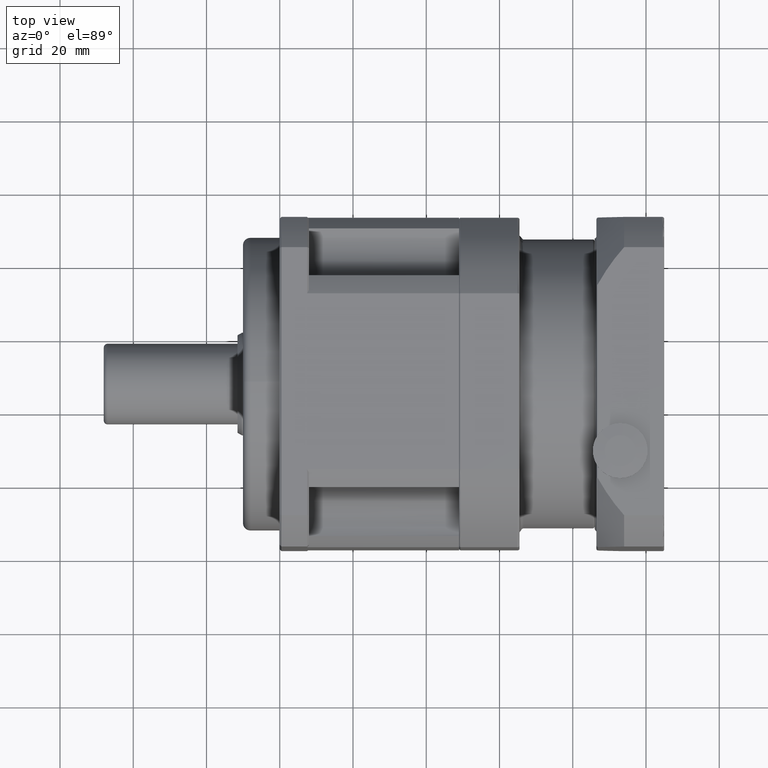
[diagram: clean part render]
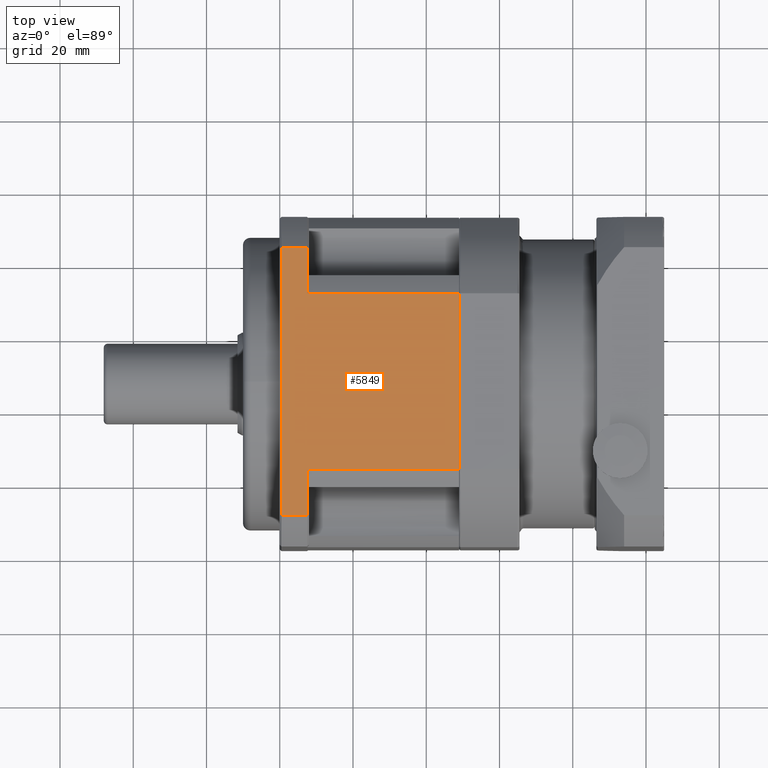
[diagram: same view with one face highlighted and labeled with its STEP entity id]
A machine part, top view. The second image highlights one B-rep face of the part: STEP entity #5849.
In plain terms, the highlighted planar face has unit normal (0, -0, 1).
Its self-contained STEP definition (entity closure, byte-faithful):
#256=LINE('',#9928,#523);
#267=LINE('',#10026,#534);
#272=LINE('',#10065,#539);
#278=LINE('',#10083,#545);
#279=LINE('',#10087,#546);
#280=LINE('',#10088,#547);
#281=LINE('',#10089,#548);
#282=LINE('',#10090,#549);
#523=VECTOR('',#7674,48.);
#534=VECTOR('',#7755,12.592348927064);
#539=VECTOR('',#7786,12.592348927064);
#545=VECTOR('',#7802,7.);
#546=VECTOR('',#7807,7.);
#547=VECTOR('',#7808,73.184697854128);
#548=VECTOR('',#7809,41.5);
#549=VECTOR('',#7810,41.5);
#883=PLANE('',#6488);
#1365=FACE_OUTER_BOUND('',#1871,.T.);
#1871=EDGE_LOOP('',(#4532,#4533,#4534,#4535,#4536,#4537,#4538,#4539));
#2726=VERTEX_POINT('',#9925);
#2727=VERTEX_POINT('',#9927);
#2758=VERTEX_POINT('',#10024);
#2759=VERTEX_POINT('',#10025);
#2771=VERTEX_POINT('',#10062);
#2772=VERTEX_POINT('',#10064);
#2775=VERTEX_POINT('',#10082);
#2776=VERTEX_POINT('',#10086);
#3357=EDGE_CURVE('',#2726,#2727,#256,.T.);
#3395=EDGE_CURVE('',#2758,#2759,#267,.T.);
#3411=EDGE_CURVE('',#2771,#2772,#272,.T.);
#3420=EDGE_CURVE('',#2775,#2772,#278,.T.);
#3422=EDGE_CURVE('',#2758,#2776,#279,.T.);
#3423=EDGE_CURVE('',#2775,#2776,#280,.T.);
#3424=EDGE_CURVE('',#2771,#2727,#281,.T.);
#3425=EDGE_CURVE('',#2726,#2759,#282,.T.);
#4532=ORIENTED_EDGE('',*,*,#3395,.F.);
#4533=ORIENTED_EDGE('',*,*,#3422,.T.);
#4534=ORIENTED_EDGE('',*,*,#3423,.F.);
#4535=ORIENTED_EDGE('',*,*,#3420,.T.);
#4536=ORIENTED_EDGE('',*,*,#3411,.F.);
#4537=ORIENTED_EDGE('',*,*,#3424,.T.);
#4538=ORIENTED_EDGE('',*,*,#3357,.F.);
#4539=ORIENTED_EDGE('',*,*,#3425,.T.);
#5849=ADVANCED_FACE('',(#1365),#883,.T.);
#6488=AXIS2_PLACEMENT_3D('',#10085,#7805,#7806);
#7674=DIRECTION('',(6.10622663543787E-16,-1.,-1.19348975147199E-15));
#7755=DIRECTION('',(6.10622663543787E-16,-1.,-1.19348975147199E-15));
#7786=DIRECTION('',(6.10622663543787E-16,-1.,-1.19348975147199E-15));
#7802=DIRECTION('',(1.,6.10622663543793E-16,-4.82820056512866E-15));
#7805=DIRECTION('center_axis',(4.82820056512866E-15,-1.19348975147199E-15,
1.));
#7806=DIRECTION('ref_axis',(-5.32907051820075E-16,1.,1.4210854715202E-15));
#7807=DIRECTION('',(-1.,-6.10622663543793E-16,4.82820056512866E-15));
#7808=DIRECTION('',(-6.10622663543787E-16,1.,1.19348975147199E-15));
#7809=DIRECTION('',(1.,6.10622663543793E-16,-4.82820056512866E-15));
#7810=DIRECTION('',(-1.,-6.10622663543793E-16,4.82820056512866E-15));
#9925=CARTESIAN_POINT('',(-11.029710344318,-8.39332757892474,55.8503877548311));
#9927=CARTESIAN_POINT('',(-11.029710344318,-56.3933275789247,55.850387754831));
#9928=CARTESIAN_POINT('',(-11.029710344318,12.6066724210752,55.8503877548311));
#10024=CARTESIAN_POINT('',(-52.529710344318,4.19902134813922,55.8503877548313));
#10025=CARTESIAN_POINT('',(-52.529710344318,-8.39332757892477,55.8503877548313));
#10026=CARTESIAN_POINT('',(-52.529710344318,-54.8933275789248,55.8503877548312));
#10062=CARTESIAN_POINT('',(-52.529710344318,-56.3933275789248,55.8503877548312));
#10064=CARTESIAN_POINT('',(-52.5297103443179,-68.9856765059887,55.8503877548312));
#10065=CARTESIAN_POINT('',(-52.529710344318,-54.8933275789248,55.8503877548312));
#10082=CARTESIAN_POINT('',(-59.5297103443179,-68.9856765059888,55.8503877548312));
#10083=CARTESIAN_POINT('',(-11.0297103443179,-68.9856765059887,55.850387754831));
#10085=CARTESIAN_POINT('Origin',(-11.0297103443179,-77.3933275789248,55.850387754831));
#10086=CARTESIAN_POINT('',(-59.529710344318,4.19902134813922,55.8503877548313));
#10087=CARTESIAN_POINT('',(-11.029710344318,4.19902134813925,55.8503877548311));
#10088=CARTESIAN_POINT('',(-59.529710344318,-54.8933275789248,55.8503877548313));
#10089=CARTESIAN_POINT('',(-11.029710344318,-56.3933275789247,55.850387754831));
#10090=CARTESIAN_POINT('',(-11.029710344318,-8.39332757892474,55.8503877548311));